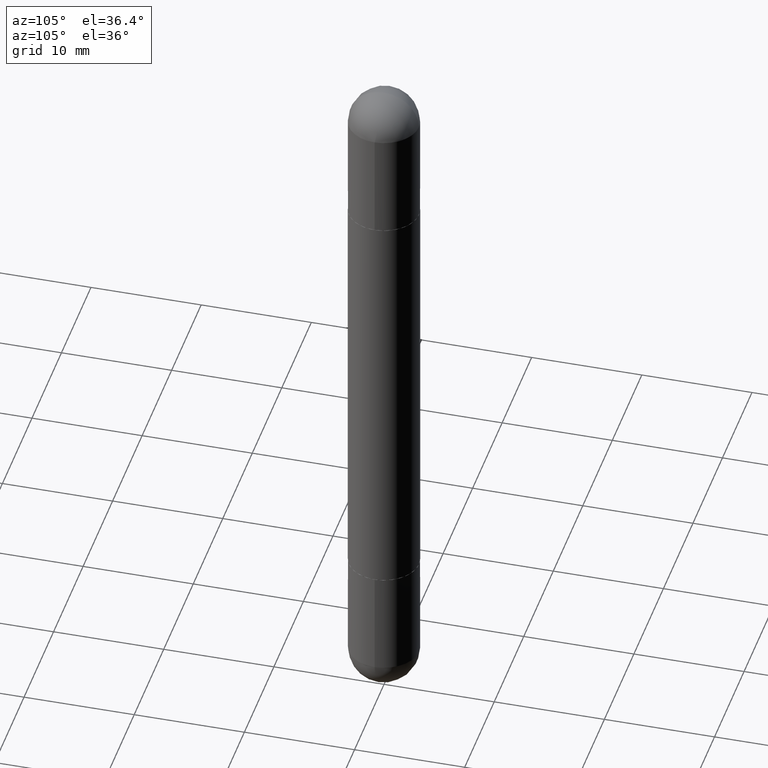
[diagram: clean part render]
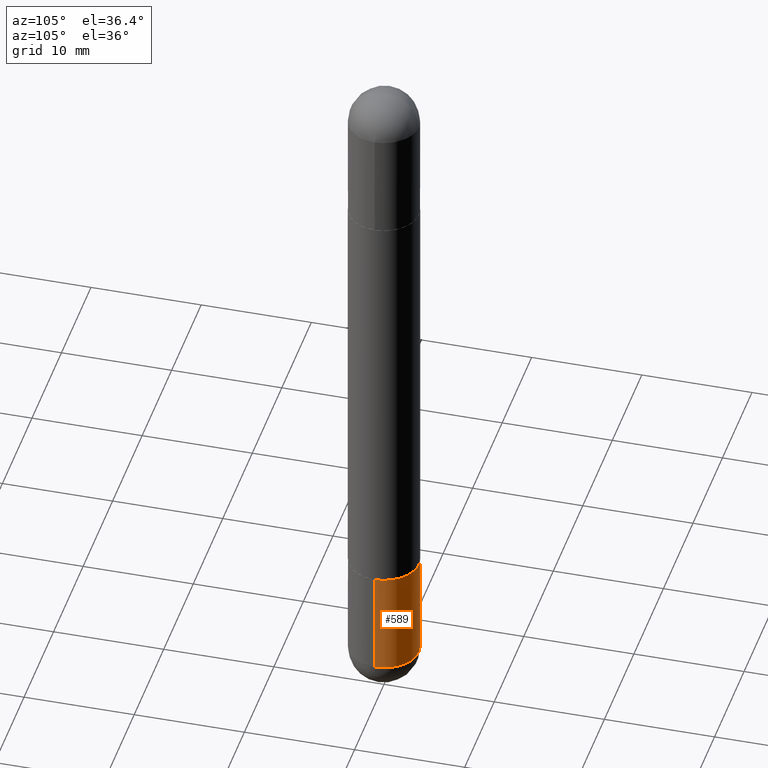
[diagram: same view with one face highlighted and labeled with its STEP entity id]
A machine part, auxiliary view. The second image highlights one B-rep face of the part: STEP entity #589.
In plain terms, the highlighted cylindrical surface (edge-blend (fillet) strip) has radius 3.175 mm, axis along (-0, 0, 1).
Its self-contained STEP definition (entity closure, byte-faithful):
#12 = CYLINDRICAL_SURFACE ( 'NONE', #372, 0.1250000000000000000 ) ;
#26 = AXIS2_PLACEMENT_3D ( 'NONE', #641, #76, #128 ) ;
#31 = EDGE_LOOP ( 'NONE', ( #720, #572, #760, #679, #105 ) ) ;
#43 = CARTESIAN_POINT ( 'NONE',  ( 0.1250000000000000000, -8.728703347107833388E-16, 6.095220969744919741E-30 ) ) ;
#73 = DIRECTION ( 'NONE',  ( 1.000000000000000000, -6.982962677686266711E-15, 4.876176775795935793E-29 ) ) ;
#76 = DIRECTION ( 'NONE',  ( -2.445468806185136597E-29, 3.491481338843145583E-15, 1.000000000000000000 ) ) ;
#83 = DIRECTION ( 'NONE',  ( -2.445468806185136597E-29, 3.491481338843145583E-15, 1.000000000000000000 ) ) ;
#86 = VERTEX_POINT ( 'NONE', #355 ) ;
#105 = ORIENTED_EDGE ( 'NONE', *, *, #718, .T. ) ;
#128 = DIRECTION ( 'NONE',  ( 1.000000000000000000, -6.982962677686270655E-15, 0.000000000000000000 ) ) ;
#129 = CARTESIAN_POINT ( 'NONE',  ( -0.1250000000000000000, -6.749437009019255804E-15, -2.000000000000000000 ) ) ;
#130 = CARTESIAN_POINT ( 'NONE',  ( -0.1250000000000000000, 8.881784197001252323E-16, -6.148668862818632227E-30 ) ) ;
#138 = EDGE_CURVE ( 'NONE', #461, #539, #221, .T. ) ;
#147 = LINE ( 'NONE', #43, #325 ) ;
#207 = DIRECTION ( 'NONE',  ( -2.445468806185136877E-29, 3.491481338843145188E-15, 1.000000000000000000 ) ) ;
#221 = CIRCLE ( 'NONE', #272, 0.1250000000000000000 ) ;
#267 = FACE_OUTER_BOUND ( 'NONE', #31, .T. ) ;
#272 = AXIS2_PLACEMENT_3D ( 'NONE', #667, #83, #598 ) ;
#310 = DIRECTION ( 'NONE',  ( 1.000000000000000000, -6.982962677686270655E-15, 0.000000000000000000 ) ) ;
#316 = LINE ( 'NONE', #130, #759 ) ;
#318 = VERTEX_POINT ( 'NONE', #498 ) ;
#325 = VECTOR ( 'NONE', #669, 39.37007874015748143 ) ;
#354 = CIRCLE ( 'NONE', #478, 0.1250000000000000000 ) ;
#355 = CARTESIAN_POINT ( 'NONE',  ( 0.1250000000000000000, -8.510485763430165164E-15, -2.375000000000000000 ) ) ;
#372 = AXIS2_PLACEMENT_3D ( 'NONE', #450, #444, #73 ) ;
#437 = VERTEX_POINT ( 'NONE', #129 ) ;
#444 = DIRECTION ( 'NONE',  ( -2.445468806185136597E-29, 3.491481338843145583E-15, 1.000000000000000000 ) ) ;
#450 = CARTESIAN_POINT ( 'NONE',  ( 0.000000000000000000, 0.000000000000000000, 0.000000000000000000 ) ) ;
#461 = VERTEX_POINT ( 'NONE', #754 ) ;
#478 = AXIS2_PLACEMENT_3D ( 'NONE', #584, #526, #310 ) ;
#498 = CARTESIAN_POINT ( 'NONE',  ( 0.1250000000000000000, -7.855833012397075293E-15, -2.000000000000000000 ) ) ;
#502 = EDGE_CURVE ( 'NONE', #539, #437, #316, .T. ) ;
#505 = CIRCLE ( 'NONE', #26, 0.1250000000000000000 ) ;
#526 = DIRECTION ( 'NONE',  ( -2.445468806185136597E-29, 3.491481338843145583E-15, 1.000000000000000000 ) ) ;
#539 = VERTEX_POINT ( 'NONE', #581 ) ;
#572 = ORIENTED_EDGE ( 'NONE', *, *, #502, .T. ) ;
#581 = CARTESIAN_POINT ( 'NONE',  ( -0.1250000000000000000, -6.749437009019256592E-15, -2.375000000000000000 ) ) ;
#584 = CARTESIAN_POINT ( 'NONE',  ( 4.890937612370273194E-29, -6.982962677686291165E-15, -2.000000000000000000 ) ) ;
#589 = ADVANCED_FACE ( 'NONE', ( #267 ), #12, .T. ) ;
#598 = DIRECTION ( 'NONE',  ( 1.000000000000000000, -6.982962677686270655E-15, 0.000000000000000000 ) ) ;
#641 = CARTESIAN_POINT ( 'NONE',  ( 5.807988414689700538E-29, -8.292268179752471696E-15, -2.375000000000000000 ) ) ;
#667 = CARTESIAN_POINT ( 'NONE',  ( 5.807988414689700538E-29, -8.292268179752471696E-15, -2.375000000000000000 ) ) ;
#669 = DIRECTION ( 'NONE',  ( -2.445468806185136877E-29, 3.491481338843145188E-15, 1.000000000000000000 ) ) ;
#679 = ORIENTED_EDGE ( 'NONE', *, *, #812, .F. ) ;
#718 = EDGE_CURVE ( 'NONE', #86, #461, #505, .T. ) ;
#720 = ORIENTED_EDGE ( 'NONE', *, *, #138, .T. ) ;
#734 = EDGE_CURVE ( 'NONE', #318, #437, #354, .T. ) ;
#754 = CARTESIAN_POINT ( 'NONE',  ( 8.728703347108403340E-16, 0.1249999999999915623, -2.375000000000000888 ) ) ;
#759 = VECTOR ( 'NONE', #207, 39.37007874015748143 ) ;
#760 = ORIENTED_EDGE ( 'NONE', *, *, #734, .F. ) ;
#812 = EDGE_CURVE ( 'NONE', #86, #318, #147, .T. ) ;